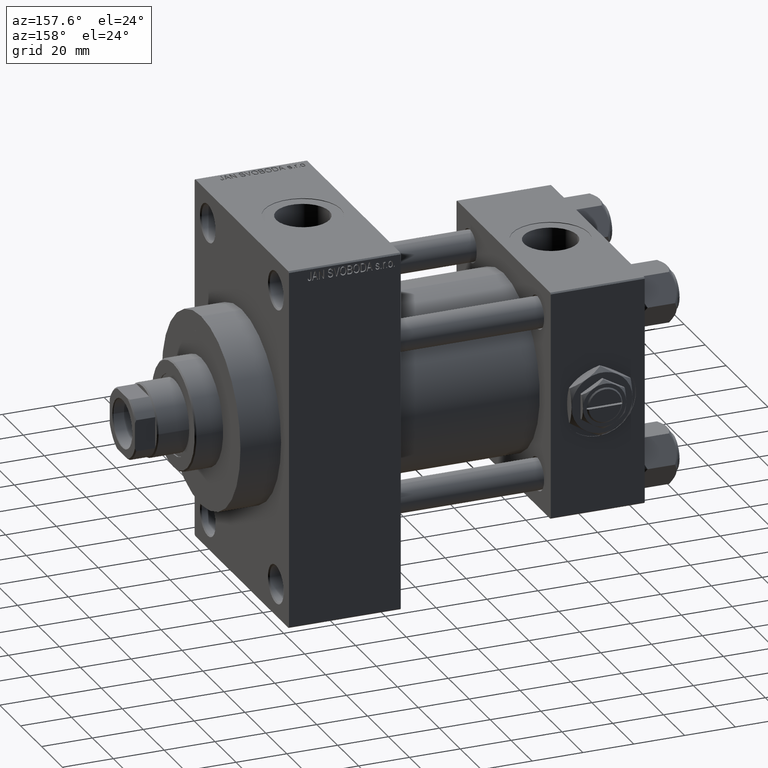
[diagram: clean part render]
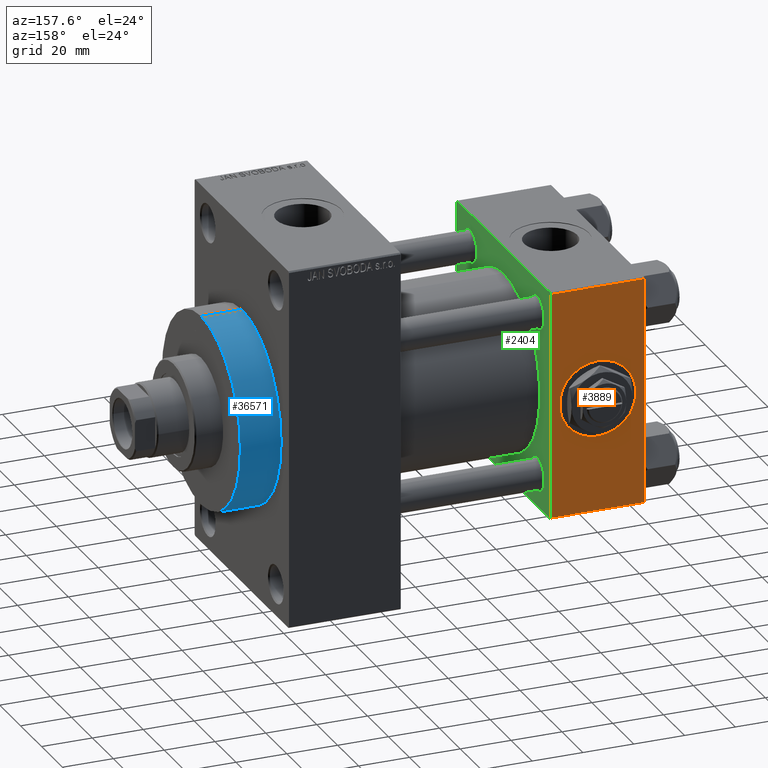
[diagram: same view with three faces highlighted in distinct colors, each labeled with its STEP entity id]
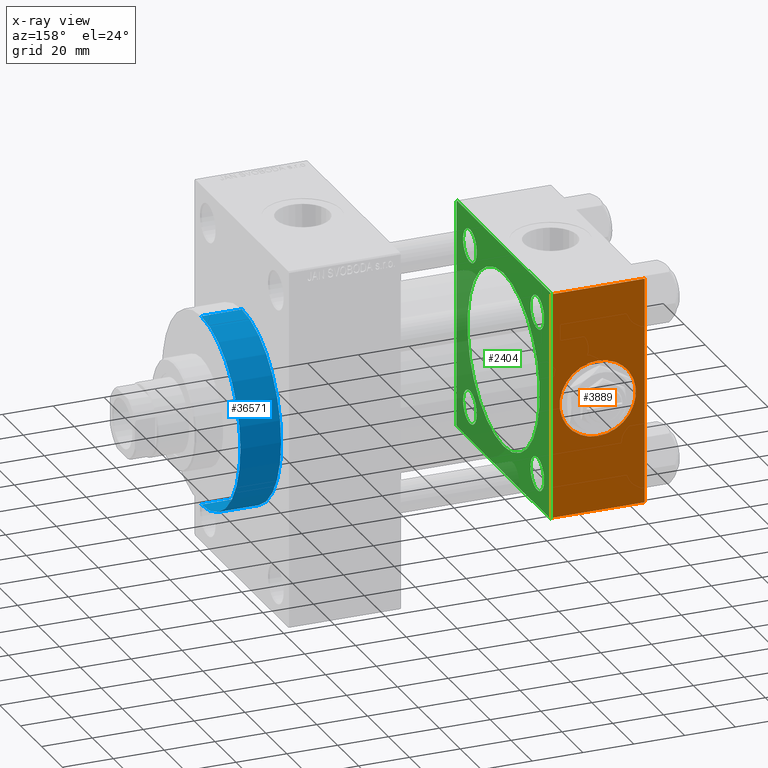
[diagram: x-ray of the same camera — body ghosted, the three highlighted faces saturated]
A machine part, auxiliary view with three faces highlighted in distinct colors.
The next image is the same camera in x-ray (body ghosted, the three faces saturated) — at least one of them is partly hidden behind the body in this view.
Their STEP definitions:

[orange] entity #3889 — the highlighted planar face has unit normal (0, 1, 0).
#957 = DIRECTION ( 'NONE',  ( 0.000000000000000000, 0.000000000000000000, 1.000000000000000000 ) ) ;
#1860 = CIRCLE ( 'NONE', #29542, 15.00000000000000178 ) ;
#2762 = AXIS2_PLACEMENT_3D ( 'NONE', #37685, #25822, #44866 ) ;
#3031 = EDGE_CURVE ( 'NONE', #37743, #41157, #32766, .T. ) ;
#3889 = ADVANCED_FACE ( 'NONE', ( #41159, #14673 ), #40659, .T. ) ;
#4061 = DIRECTION ( 'NONE',  ( 0.000000000000000000, 0.000000000000000000, 1.000000000000000000 ) ) ;
#4236 = LINE ( 'NONE', #39313, #31228 ) ;
#6433 = CARTESIAN_POINT ( 'NONE',  ( 37.00000000000000000, 44.99999999999998579, 44.50000000000001421 ) ) ;
#7304 = CARTESIAN_POINT ( 'NONE',  ( 0.000000000000000000, 44.99999999999998579, -44.49999999999995737 ) ) ;
#7736 = VECTOR ( 'NONE', #41343, 1000.000000000000000 ) ;
#8610 = EDGE_CURVE ( 'NONE', #33119, #48596, #29619, .T. ) ;
#9193 = EDGE_CURVE ( 'NONE', #11540, #12035, #26759, .T. ) ;
#10240 = CARTESIAN_POINT ( 'NONE',  ( 37.00000000000000000, 44.99999999999998579, -44.49999999999995737 ) ) ;
#11540 = VERTEX_POINT ( 'NONE', #6433 ) ;
#12035 = VERTEX_POINT ( 'NONE', #10240 ) ;
#12710 = LINE ( 'NONE', #24088, #27692 ) ;
#12852 = DIRECTION ( 'NONE',  ( 0.000000000000000000, 1.000000000000000000, 0.000000000000000000 ) ) ;
#14339 = ORIENTED_EDGE ( 'NONE', *, *, #3031, .F. ) ;
#14673 = FACE_OUTER_BOUND ( 'NONE', #32394, .T. ) ;
#14689 = ORIENTED_EDGE ( 'NONE', *, *, #45106, .T. ) ;
#14826 = VECTOR ( 'NONE', #37281, 1000.000000000000000 ) ;
#17420 = CARTESIAN_POINT ( 'NONE',  ( 18.50000000000000000, 44.99999999999998579, 15.00000000000000178 ) ) ;
#20537 = CARTESIAN_POINT ( 'NONE',  ( 18.50000000000000000, 44.99999999999998579, 0.000000000000000000 ) ) ;
#20970 = CARTESIAN_POINT ( 'NONE',  ( 18.50000000000000355, 44.99999999999998579, -15.00000000000000178 ) ) ;
#24088 = CARTESIAN_POINT ( 'NONE',  ( 37.00000000000000000, 44.99999999999998579, -44.49999999999998579 ) ) ;
#24267 = EDGE_LOOP ( 'NONE', ( #14339, #39541 ) ) ;
#25822 = DIRECTION ( 'NONE',  ( -0.000000000000000000, 1.000000000000000000, 0.000000000000000000 ) ) ;
#25984 = ORIENTED_EDGE ( 'NONE', *, *, #36137, .T. ) ;
#26759 = LINE ( 'NONE', #37150, #7736 ) ;
#27084 = DIRECTION ( 'NONE',  ( 0.000000000000000000, 1.000000000000000000, 0.000000000000000000 ) ) ;
#27320 = DIRECTION ( 'NONE',  ( -1.000000000000000000, 0.000000000000000000, 0.000000000000000000 ) ) ;
#27692 = VECTOR ( 'NONE', #27320, 1000.000000000000000 ) ;
#28048 = AXIS2_PLACEMENT_3D ( 'NONE', #20537, #12852, #957 ) ;
#29542 = AXIS2_PLACEMENT_3D ( 'NONE', #30815, #27084, #4061 ) ;
#29605 = ORIENTED_EDGE ( 'NONE', *, *, #8610, .F. ) ;
#29619 = LINE ( 'NONE', #32839, #14826 ) ;
#30296 = ORIENTED_EDGE ( 'NONE', *, *, #9193, .T. ) ;
#30815 = CARTESIAN_POINT ( 'NONE',  ( 18.50000000000000000, 44.99999999999998579, 0.000000000000000000 ) ) ;
#31228 = VECTOR ( 'NONE', #33699, 1000.000000000000000 ) ;
#32394 = EDGE_LOOP ( 'NONE', ( #30296, #25984, #29605, #14689 ) ) ;
#32766 = CIRCLE ( 'NONE', #28048, 15.00000000000000178 ) ;
#32839 = CARTESIAN_POINT ( 'NONE',  ( 0.000000000000000000, 44.99999999999998579, 45.00000000000001421 ) ) ;
#33119 = VERTEX_POINT ( 'NONE', #48132 ) ;
#33699 = DIRECTION ( 'NONE',  ( 1.000000000000000000, 0.000000000000000000, 0.000000000000000000 ) ) ;
#36137 = EDGE_CURVE ( 'NONE', #12035, #48596, #12710, .T. ) ;
#37150 = CARTESIAN_POINT ( 'NONE',  ( 37.00000000000000000, 44.99999999999998579, 45.00000000000001421 ) ) ;
#37281 = DIRECTION ( 'NONE',  ( 0.000000000000000000, 0.000000000000000000, -1.000000000000000000 ) ) ;
#37685 = CARTESIAN_POINT ( 'NONE',  ( 37.00000000000000000, 44.99999999999998579, 45.00000000000001421 ) ) ;
#37743 = VERTEX_POINT ( 'NONE', #17420 ) ;
#39313 = CARTESIAN_POINT ( 'NONE',  ( 37.00000000000000000, 44.99999999999998579, 44.50000000000001421 ) ) ;
#39541 = ORIENTED_EDGE ( 'NONE', *, *, #42735, .F. ) ;
#40659 = PLANE ( 'NONE',  #2762 ) ;
#41157 = VERTEX_POINT ( 'NONE', #20970 ) ;
#41159 = FACE_BOUND ( 'NONE', #24267, .T. ) ;
#41343 = DIRECTION ( 'NONE',  ( 0.000000000000000000, 0.000000000000000000, -1.000000000000000000 ) ) ;
#42735 = EDGE_CURVE ( 'NONE', #41157, #37743, #1860, .T. ) ;
#44866 = DIRECTION ( 'NONE',  ( 0.000000000000000000, -0.000000000000000000, 1.000000000000000000 ) ) ;
#45106 = EDGE_CURVE ( 'NONE', #33119, #11540, #4236, .T. ) ;
#48132 = CARTESIAN_POINT ( 'NONE',  ( 0.000000000000000000, 44.99999999999998579, 44.50000000000001421 ) ) ;
#48596 = VERTEX_POINT ( 'NONE', #7304 ) ;

[blue] entity #36571 — the highlighted cylindrical surface (partial cylindrical patch) has radius 37.5 mm, axis along (-1, -0, -0).
#2357 = CYLINDRICAL_SURFACE ( 'NONE', #34834, 37.50000000000000711 ) ;
#2422 = EDGE_CURVE ( 'NONE', #26400, #4489, #28403, .T. ) ;
#2817 = CIRCLE ( 'NONE', #4432, 37.50000000000000711 ) ;
#2965 = DIRECTION ( 'NONE',  ( 1.000000000000000000, 0.000000000000000000, 0.000000000000000000 ) ) ;
#4432 = AXIS2_PLACEMENT_3D ( 'NONE', #12363, #30436, #11873 ) ;
#4489 = VERTEX_POINT ( 'NONE', #23206 ) ;
#5078 = AXIS2_PLACEMENT_3D ( 'NONE', #36879, #2965, #45272 ) ;
#7800 = VECTOR ( 'NONE', #43182, 1000.000000000000000 ) ;
#7823 = CARTESIAN_POINT ( 'NONE',  ( 156.0000000000000284, 0.000000000000000000, 37.50000000000000711 ) ) ;
#7884 = ORIENTED_EDGE ( 'NONE', *, *, #28798, .F. ) ;
#11873 = DIRECTION ( 'NONE',  ( 0.000000000000000000, 0.000000000000000000, -1.000000000000000000 ) ) ;
#12363 = CARTESIAN_POINT ( 'NONE',  ( 140.0000000000000000, 0.000000000000000000, 0.000000000000000000 ) ) ;
#12720 = CARTESIAN_POINT ( 'NONE',  ( 156.0000000000000284, 4.592425496802575156E-15, -37.50000000000000711 ) ) ;
#12998 = LINE ( 'NONE', #28098, #7800 ) ;
#13031 = CARTESIAN_POINT ( 'NONE',  ( 156.0000000000000284, 0.000000000000000000, 0.000000000000000000 ) ) ;
#14539 = CIRCLE ( 'NONE', #5078, 37.50000000000000711 ) ;
#14671 = EDGE_CURVE ( 'NONE', #26400, #40333, #14539, .T. ) ;
#17165 = ORIENTED_EDGE ( 'NONE', *, *, #14671, .F. ) ;
#17733 = EDGE_LOOP ( 'NONE', ( #17165, #37245, #32957, #7884 ) ) ;
#20231 = DIRECTION ( 'NONE',  ( 0.000000000000000000, 0.000000000000000000, 1.000000000000000000 ) ) ;
#23206 = CARTESIAN_POINT ( 'NONE',  ( 140.0000000000000000, 4.592425496802575156E-15, -37.50000000000000711 ) ) ;
#24679 = DIRECTION ( 'NONE',  ( -1.000000000000000000, -0.000000000000000000, -0.000000000000000000 ) ) ;
#26400 = VERTEX_POINT ( 'NONE', #12720 ) ;
#28098 = CARTESIAN_POINT ( 'NONE',  ( 156.0000000000000284, 0.000000000000000000, 37.50000000000000711 ) ) ;
#28403 = LINE ( 'NONE', #43484, #41456 ) ;
#28798 = EDGE_CURVE ( 'NONE', #40333, #44705, #12998, .T. ) ;
#30436 = DIRECTION ( 'NONE',  ( 1.000000000000000000, 0.000000000000000000, 0.000000000000000000 ) ) ;
#32091 = DIRECTION ( 'NONE',  ( -1.000000000000000000, -0.000000000000000000, -0.000000000000000000 ) ) ;
#32957 = ORIENTED_EDGE ( 'NONE', *, *, #47251, .T. ) ;
#34834 = AXIS2_PLACEMENT_3D ( 'NONE', #13031, #32091, #20231 ) ;
#36571 = ADVANCED_FACE ( 'NONE', ( #43942 ), #2357, .T. ) ;
#36879 = CARTESIAN_POINT ( 'NONE',  ( 156.0000000000000284, 0.000000000000000000, 0.000000000000000000 ) ) ;
#37245 = ORIENTED_EDGE ( 'NONE', *, *, #2422, .T. ) ;
#40333 = VERTEX_POINT ( 'NONE', #7823 ) ;
#41456 = VECTOR ( 'NONE', #24679, 1000.000000000000000 ) ;
#43182 = DIRECTION ( 'NONE',  ( -1.000000000000000000, -0.000000000000000000, -0.000000000000000000 ) ) ;
#43484 = CARTESIAN_POINT ( 'NONE',  ( 156.0000000000000284, 4.592425496802575156E-15, -37.50000000000000711 ) ) ;
#43942 = FACE_OUTER_BOUND ( 'NONE', #17733, .T. ) ;
#44705 = VERTEX_POINT ( 'NONE', #47764 ) ;
#45272 = DIRECTION ( 'NONE',  ( 0.000000000000000000, 0.000000000000000000, -1.000000000000000000 ) ) ;
#47251 = EDGE_CURVE ( 'NONE', #4489, #44705, #2817, .T. ) ;
#47764 = CARTESIAN_POINT ( 'NONE',  ( 140.0000000000000000, 0.000000000000000000, 37.50000000000000711 ) ) ;

[green] entity #2404 — the highlighted planar face has unit normal (-1, 0, 0).
#3 = DIRECTION ( 'NONE',  ( 0.000000000000000000, 0.000000000000000000, 1.000000000000000000 ) ) ;
#636 = ORIENTED_EDGE ( 'NONE', *, *, #39501, .T. ) ;
#1018 = CARTESIAN_POINT ( 'NONE',  ( 37.00000000000000000, 44.99999999999998579, 45.00000000000001421 ) ) ;
#2006 = EDGE_LOOP ( 'NONE', ( #29628, #31798 ) ) ;
#2404 = ADVANCED_FACE ( 'NONE', ( #33086, #13540, #6116, #14034, #44221, #14276 ), #20971, .F. ) ;
#2623 = LINE ( 'NONE', #15011, #42603 ) ;
#3122 = ORIENTED_EDGE ( 'NONE', *, *, #19305, .F. ) ;
#3269 = VECTOR ( 'NONE', #33730, 1000.000000000000114 ) ;
#3468 = VERTEX_POINT ( 'NONE', #24706 ) ;
#3516 = LINE ( 'NONE', #42387, #3269 ) ;
#3558 = AXIS2_PLACEMENT_3D ( 'NONE', #26554, #7019, #33477 ) ;
#4998 = DIRECTION ( 'NONE',  ( 0.000000000000000000, -1.000000000000000000, -1.541976423090495387E-16 ) ) ;
#5389 = CIRCLE ( 'NONE', #31510, 6.500000000000033751 ) ;
#5877 = CIRCLE ( 'NONE', #46195, 34.50000000000000000 ) ;
#5930 = ORIENTED_EDGE ( 'NONE', *, *, #28103, .T. ) ;
#5940 = EDGE_CURVE ( 'NONE', #34713, #36108, #9208, .T. ) ;
#6014 = EDGE_CURVE ( 'NONE', #43674, #18042, #29230, .T. ) ;
#6116 = FACE_BOUND ( 'NONE', #13017, .T. ) ;
#6433 = CARTESIAN_POINT ( 'NONE',  ( 37.00000000000000000, 44.99999999999998579, 44.50000000000001421 ) ) ;
#6959 = DIRECTION ( 'NONE',  ( 0.000000000000000000, -1.000000000000000000, -1.541976423090495633E-16 ) ) ;
#7019 = DIRECTION ( 'NONE',  ( -1.000000000000000000, 0.000000000000000000, -0.000000000000000000 ) ) ;
#7159 = ORIENTED_EDGE ( 'NONE', *, *, #5940, .T. ) ;
#7480 = EDGE_LOOP ( 'NONE', ( #26736, #3122 ) ) ;
#7736 = VECTOR ( 'NONE', #41343, 1000.000000000000000 ) ;
#9193 = EDGE_CURVE ( 'NONE', #11540, #12035, #26759, .T. ) ;
#9208 = LINE ( 'NONE', #1018, #36823 ) ;
#9209 = AXIS2_PLACEMENT_3D ( 'NONE', #41414, #37709, #25347 ) ;
#10092 = EDGE_CURVE ( 'NONE', #26066, #18094, #45667, .T. ) ;
#10240 = CARTESIAN_POINT ( 'NONE',  ( 37.00000000000000000, 44.99999999999998579, -44.49999999999995737 ) ) ;
#10316 = CARTESIAN_POINT ( 'NONE',  ( 37.00000000000000000, 0.000000000000000000, 0.000000000000000000 ) ) ;
#10327 = AXIS2_PLACEMENT_3D ( 'NONE', #36582, #17771, #43293 ) ;
#10465 = ORIENTED_EDGE ( 'NONE', *, *, #18363, .T. ) ;
#10511 = DIRECTION ( 'NONE',  ( 1.000000000000000000, -0.000000000000000000, 0.000000000000000000 ) ) ;
#10760 = EDGE_CURVE ( 'NONE', #14334, #32442, #19542, .T. ) ;
#11000 = CARTESIAN_POINT ( 'NONE',  ( 37.00000000000000000, 32.14999999999999147, 25.64999999999997016 ) ) ;
#11314 = CIRCLE ( 'NONE', #36612, 6.500000000000033751 ) ;
#11403 = CARTESIAN_POINT ( 'NONE',  ( 37.00000000000000000, 32.14999999999999147, 32.15000000000000568 ) ) ;
#11540 = VERTEX_POINT ( 'NONE', #6433 ) ;
#11767 = CARTESIAN_POINT ( 'NONE',  ( 37.00000000000000000, -2.602085213965210642E-15, 34.50000000000000000 ) ) ;
#12035 = VERTEX_POINT ( 'NONE', #10240 ) ;
#12667 = CARTESIAN_POINT ( 'NONE',  ( 37.00000000000000000, 44.49999999999998579, -44.99999999999998579 ) ) ;
#12676 = EDGE_LOOP ( 'NONE', ( #36304, #36713 ) ) ;
#13017 = EDGE_LOOP ( 'NONE', ( #10465, #16766 ) ) ;
#13409 = DIRECTION ( 'NONE',  ( -1.000000000000000000, 0.000000000000000000, -0.000000000000000000 ) ) ;
#13540 = FACE_BOUND ( 'NONE', #2006, .T. ) ;
#13921 = DIRECTION ( 'NONE',  ( 0.000000000000000000, 0.000000000000000000, 1.000000000000000000 ) ) ;
#14034 = FACE_BOUND ( 'NONE', #12676, .T. ) ;
#14276 = FACE_OUTER_BOUND ( 'NONE', #45344, .T. ) ;
#14334 = VERTEX_POINT ( 'NONE', #32909 ) ;
#14354 = CARTESIAN_POINT ( 'NONE',  ( 37.00000000000000000, -32.14999999999997726, -25.65000000000000568 ) ) ;
#14633 = ORIENTED_EDGE ( 'NONE', *, *, #19727, .T. ) ;
#14733 = CIRCLE ( 'NONE', #3558, 6.500000000000033751 ) ;
#15011 = CARTESIAN_POINT ( 'NONE',  ( 37.00000000000000000, 44.99999999999998579, -44.49999999999998579 ) ) ;
#15582 = CARTESIAN_POINT ( 'NONE',  ( 37.00000000000000000, -45.00000000000000711, 44.49999999999997158 ) ) ;
#15949 = CIRCLE ( 'NONE', #43589, 34.50000000000000000 ) ;
#16549 = EDGE_CURVE ( 'NONE', #3468, #47180, #11314, .T. ) ;
#16766 = ORIENTED_EDGE ( 'NONE', *, *, #10760, .T. ) ;
#16788 = VECTOR ( 'NONE', #34681, 1000.000000000000000 ) ;
#16874 = ORIENTED_EDGE ( 'NONE', *, *, #32112, .T. ) ;
#16997 = DIRECTION ( 'NONE',  ( 1.000000000000000000, -0.000000000000000000, 0.000000000000000000 ) ) ;
#17100 = LINE ( 'NONE', #32444, #43071 ) ;
#17258 = DIRECTION ( 'NONE',  ( -0.000000000000000000, 0.000000000000000000, 1.000000000000000000 ) ) ;
#17387 = CARTESIAN_POINT ( 'NONE',  ( 37.00000000000000000, -32.14999999999997726, 32.15000000000001279 ) ) ;
#17586 = CARTESIAN_POINT ( 'NONE',  ( 37.00000000000000000, 44.99999999999998579, -44.99999999999998579 ) ) ;
#17771 = DIRECTION ( 'NONE',  ( -1.000000000000000000, 0.000000000000000000, -0.000000000000000000 ) ) ;
#17818 = CARTESIAN_POINT ( 'NONE',  ( 37.00000000000000000, 32.14999999999999147, -25.64999999999997016 ) ) ;
#18042 = VERTEX_POINT ( 'NONE', #24871 ) ;
#18094 = VERTEX_POINT ( 'NONE', #11000 ) ;
#18363 = EDGE_CURVE ( 'NONE', #32442, #14334, #46925, .T. ) ;
#19305 = EDGE_CURVE ( 'NONE', #38303, #36834, #5877, .T. ) ;
#19542 = CIRCLE ( 'NONE', #25028, 6.500000000000005329 ) ;
#19651 = CIRCLE ( 'NONE', #25179, 6.500000000000005329 ) ;
#19657 = VERTEX_POINT ( 'NONE', #14354 ) ;
#19727 = EDGE_CURVE ( 'NONE', #36108, #28744, #41814, .T. ) ;
#20160 = DIRECTION ( 'NONE',  ( 0.000000000000000000, 0.000000000000000000, 1.000000000000000000 ) ) ;
#20878 = DIRECTION ( 'NONE',  ( -1.000000000000000000, 0.000000000000000000, -0.000000000000000000 ) ) ;
#20971 = PLANE ( 'NONE',  #38330 ) ;
#21452 = EDGE_LOOP ( 'NONE', ( #5930, #29680 ) ) ;
#21849 = DIRECTION ( 'NONE',  ( -1.000000000000000000, 0.000000000000000000, -0.000000000000000000 ) ) ;
#22554 = DIRECTION ( 'NONE',  ( -1.000000000000000000, 0.000000000000000000, -0.000000000000000000 ) ) ;
#22800 = CARTESIAN_POINT ( 'NONE',  ( 37.00000000000000000, -32.14999999999997726, -38.65000000000001990 ) ) ;
#24706 = CARTESIAN_POINT ( 'NONE',  ( 37.00000000000000000, 32.14999999999999147, -38.65000000000004121 ) ) ;
#24871 = CARTESIAN_POINT ( 'NONE',  ( 37.00000000000000000, -44.49999999999995737, -45.00000000000000000 ) ) ;
#25028 = AXIS2_PLACEMENT_3D ( 'NONE', #43669, #35773, #25125 ) ;
#25125 = DIRECTION ( 'NONE',  ( 0.000000000000000000, 0.000000000000000000, 1.000000000000000000 ) ) ;
#25179 = AXIS2_PLACEMENT_3D ( 'NONE', #38961, #20878, #20160 ) ;
#25347 = DIRECTION ( 'NONE',  ( 0.000000000000000000, 0.000000000000000000, 1.000000000000000000 ) ) ;
#25413 = DIRECTION ( 'NONE',  ( -1.000000000000000000, 0.000000000000000000, -0.000000000000000000 ) ) ;
#25612 = DIRECTION ( 'NONE',  ( 0.000000000000000000, 0.000000000000000000, 1.000000000000000000 ) ) ;
#25831 = CARTESIAN_POINT ( 'NONE',  ( 37.00000000000000000, 44.49999999999998579, 45.00000000000001421 ) ) ;
#26066 = VERTEX_POINT ( 'NONE', #46186 ) ;
#26554 = CARTESIAN_POINT ( 'NONE',  ( 37.00000000000000000, 32.14999999999999147, -32.15000000000000568 ) ) ;
#26736 = ORIENTED_EDGE ( 'NONE', *, *, #40254, .F. ) ;
#26759 = LINE ( 'NONE', #37150, #7736 ) ;
#27241 = LINE ( 'NONE', #42341, #16788 ) ;
#27338 = VERTEX_POINT ( 'NONE', #33714 ) ;
#28016 = DIRECTION ( 'NONE',  ( 0.000000000000000000, 0.000000000000000000, 1.000000000000000000 ) ) ;
#28103 = EDGE_CURVE ( 'NONE', #38191, #19657, #19651, .T. ) ;
#28717 = DIRECTION ( 'NONE',  ( 0.000000000000000000, -0.7071067811865474617, 0.7071067811865474617 ) ) ;
#28744 = VERTEX_POINT ( 'NONE', #46426 ) ;
#29200 = CARTESIAN_POINT ( 'NONE',  ( 37.00000000000000000, -32.14999999999997726, 25.65000000000000568 ) ) ;
#29230 = LINE ( 'NONE', #17586, #48689 ) ;
#29609 = ORIENTED_EDGE ( 'NONE', *, *, #9193, .F. ) ;
#29628 = ORIENTED_EDGE ( 'NONE', *, *, #16549, .T. ) ;
#29680 = ORIENTED_EDGE ( 'NONE', *, *, #37140, .T. ) ;
#30699 = DIRECTION ( 'NONE',  ( -0.000000000000000000, -0.7071067811865425767, -0.7071067811865524577 ) ) ;
#31349 = EDGE_CURVE ( 'NONE', #18094, #26066, #5389, .T. ) ;
#31510 = AXIS2_PLACEMENT_3D ( 'NONE', #11403, #22554, #3 ) ;
#31798 = ORIENTED_EDGE ( 'NONE', *, *, #48867, .T. ) ;
#31929 = AXIS2_PLACEMENT_3D ( 'NONE', #17387, #21849, #13921 ) ;
#32112 = EDGE_CURVE ( 'NONE', #43674, #12035, #2623, .T. ) ;
#32442 = VERTEX_POINT ( 'NONE', #29200 ) ;
#32444 = CARTESIAN_POINT ( 'NONE',  ( 37.00000000000000000, 44.49999999999998579, 45.00000000000001421 ) ) ;
#32909 = CARTESIAN_POINT ( 'NONE',  ( 37.00000000000000000, -32.14999999999997726, 38.65000000000001990 ) ) ;
#33086 = FACE_BOUND ( 'NONE', #21452, .T. ) ;
#33477 = DIRECTION ( 'NONE',  ( 0.000000000000000000, 0.000000000000000000, 1.000000000000000000 ) ) ;
#33714 = CARTESIAN_POINT ( 'NONE',  ( 37.00000000000000000, -45.00000000000000000, -44.49999999999995737 ) ) ;
#33730 = DIRECTION ( 'NONE',  ( 0.000000000000000000, 0.7071067811865474617, -0.7071067811865474617 ) ) ;
#33817 = DIRECTION ( 'NONE',  ( -0.000000000000000000, 0.7071067811865474617, 0.7071067811865474617 ) ) ;
#34681 = DIRECTION ( 'NONE',  ( 0.000000000000000000, 7.709882115452476934E-17, -1.000000000000000000 ) ) ;
#34713 = VERTEX_POINT ( 'NONE', #25831 ) ;
#35773 = DIRECTION ( 'NONE',  ( -1.000000000000000000, 0.000000000000000000, -0.000000000000000000 ) ) ;
#36108 = VERTEX_POINT ( 'NONE', #37720 ) ;
#36304 = ORIENTED_EDGE ( 'NONE', *, *, #31349, .T. ) ;
#36582 = CARTESIAN_POINT ( 'NONE',  ( 37.00000000000000000, -32.14999999999997726, -32.15000000000001279 ) ) ;
#36612 = AXIS2_PLACEMENT_3D ( 'NONE', #39162, #13409, #28016 ) ;
#36713 = ORIENTED_EDGE ( 'NONE', *, *, #10092, .T. ) ;
#36823 = VECTOR ( 'NONE', #4998, 1000.000000000000000 ) ;
#36834 = VERTEX_POINT ( 'NONE', #11767 ) ;
#37140 = EDGE_CURVE ( 'NONE', #19657, #38191, #47449, .T. ) ;
#37150 = CARTESIAN_POINT ( 'NONE',  ( 37.00000000000000000, 44.99999999999998579, 45.00000000000001421 ) ) ;
#37709 = DIRECTION ( 'NONE',  ( -1.000000000000000000, 0.000000000000000000, -0.000000000000000000 ) ) ;
#37720 = CARTESIAN_POINT ( 'NONE',  ( 37.00000000000000000, -44.49999999999995737, 45.00000000000000000 ) ) ;
#37974 = ORIENTED_EDGE ( 'NONE', *, *, #40646, .T. ) ;
#38191 = VERTEX_POINT ( 'NONE', #22800 ) ;
#38303 = VERTEX_POINT ( 'NONE', #49007 ) ;
#38330 = AXIS2_PLACEMENT_3D ( 'NONE', #10316, #25413, #17258 ) ;
#38961 = CARTESIAN_POINT ( 'NONE',  ( 37.00000000000000000, -32.14999999999997726, -32.15000000000001279 ) ) ;
#39162 = CARTESIAN_POINT ( 'NONE',  ( 37.00000000000000000, 32.14999999999999147, -32.15000000000000568 ) ) ;
#39501 = EDGE_CURVE ( 'NONE', #27338, #18042, #3516, .T. ) ;
#39764 = DIRECTION ( 'NONE',  ( 0.000000000000000000, 0.000000000000000000, 1.000000000000000000 ) ) ;
#39810 = ORIENTED_EDGE ( 'NONE', *, *, #44685, .T. ) ;
#40254 = EDGE_CURVE ( 'NONE', #36834, #38303, #15949, .T. ) ;
#40646 = EDGE_CURVE ( 'NONE', #28744, #27338, #27241, .T. ) ;
#41343 = DIRECTION ( 'NONE',  ( 0.000000000000000000, 0.000000000000000000, -1.000000000000000000 ) ) ;
#41414 = CARTESIAN_POINT ( 'NONE',  ( 37.00000000000000000, 32.14999999999999147, 32.15000000000000568 ) ) ;
#41814 = LINE ( 'NONE', #15582, #44631 ) ;
#42121 = CARTESIAN_POINT ( 'NONE',  ( 37.00000000000000000, -2.602085213965210642E-15, 0.000000000000000000 ) ) ;
#42341 = CARTESIAN_POINT ( 'NONE',  ( 37.00000000000000000, -45.00000000000000711, 45.00000000000000000 ) ) ;
#42387 = CARTESIAN_POINT ( 'NONE',  ( 37.00000000000000000, -44.49999999999998579, -45.00000000000000000 ) ) ;
#42603 = VECTOR ( 'NONE', #33817, 1000.000000000000114 ) ;
#43071 = VECTOR ( 'NONE', #28717, 1000.000000000000114 ) ;
#43293 = DIRECTION ( 'NONE',  ( 0.000000000000000000, 0.000000000000000000, 1.000000000000000000 ) ) ;
#43589 = AXIS2_PLACEMENT_3D ( 'NONE', #43704, #16997, #39764 ) ;
#43669 = CARTESIAN_POINT ( 'NONE',  ( 37.00000000000000000, -32.14999999999997726, 32.15000000000001279 ) ) ;
#43674 = VERTEX_POINT ( 'NONE', #12667 ) ;
#43704 = CARTESIAN_POINT ( 'NONE',  ( 37.00000000000000000, -2.602085213965210642E-15, 0.000000000000000000 ) ) ;
#44221 = FACE_BOUND ( 'NONE', #7480, .T. ) ;
#44631 = VECTOR ( 'NONE', #30699, 1000.000000000000114 ) ;
#44685 = EDGE_CURVE ( 'NONE', #11540, #34713, #17100, .T. ) ;
#45344 = EDGE_LOOP ( 'NONE', ( #48712, #16874, #29609, #39810, #7159, #14633, #37974, #636 ) ) ;
#45667 = CIRCLE ( 'NONE', #9209, 6.500000000000033751 ) ;
#46186 = CARTESIAN_POINT ( 'NONE',  ( 37.00000000000000000, 32.14999999999999147, 38.65000000000004121 ) ) ;
#46195 = AXIS2_PLACEMENT_3D ( 'NONE', #42121, #10511, #25612 ) ;
#46426 = CARTESIAN_POINT ( 'NONE',  ( 37.00000000000000000, -45.00000000000000711, 44.49999999999997158 ) ) ;
#46925 = CIRCLE ( 'NONE', #31929, 6.500000000000005329 ) ;
#47180 = VERTEX_POINT ( 'NONE', #17818 ) ;
#47449 = CIRCLE ( 'NONE', #10327, 6.500000000000005329 ) ;
#48689 = VECTOR ( 'NONE', #6959, 1000.000000000000000 ) ;
#48712 = ORIENTED_EDGE ( 'NONE', *, *, #6014, .F. ) ;
#48867 = EDGE_CURVE ( 'NONE', #47180, #3468, #14733, .T. ) ;
#49007 = CARTESIAN_POINT ( 'NONE',  ( 37.00000000000000000, 1.622946243093158675E-15, -34.50000000000000000 ) ) ;